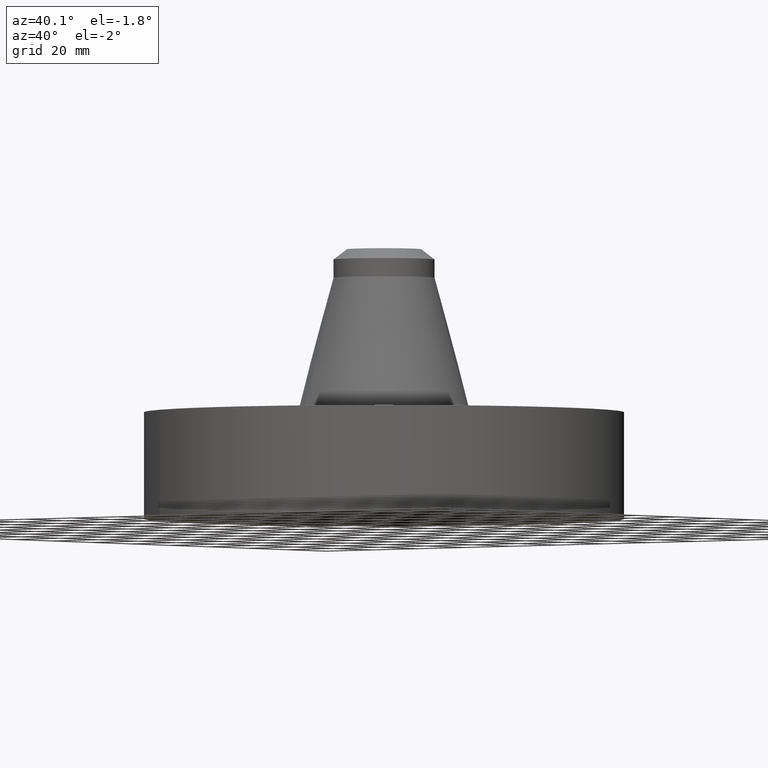
[diagram: clean part render]
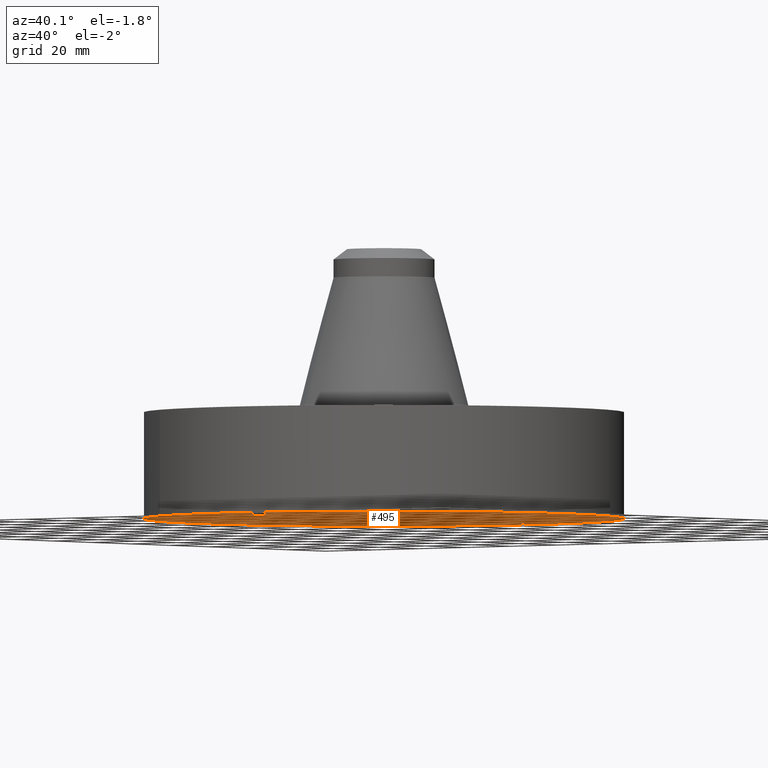
[diagram: same view with one face highlighted and labeled with its STEP entity id]
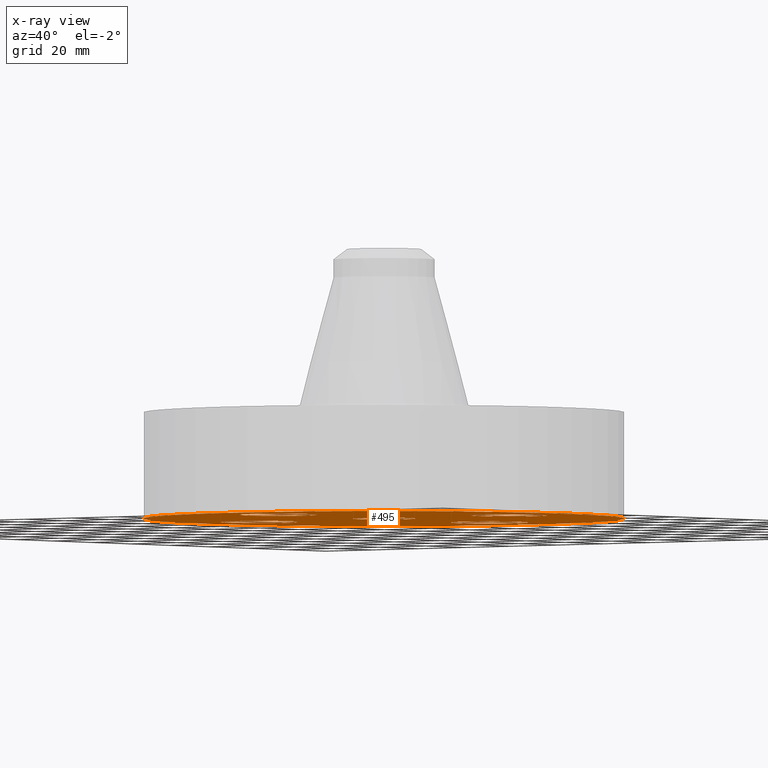
[diagram: x-ray of the same camera — body ghosted, the highlighted face saturated]
A machine part, auxiliary view. The second image highlights one B-rep face of the part: STEP entity #495.
The next image is the same camera in x-ray: the body ghosted, the highlighted face saturated — about 0% of this face is hidden behind the body in this view.
In plain terms, the highlighted planar face has unit normal (0, 0, -1).
Its self-contained STEP definition (entity closure, byte-faithful):
#51=AXIS2_PLACEMENT_3D('Circle Axis2P3D',#49,#50,$) ;
#77=AXIS2_PLACEMENT_3D('Circle Axis2P3D',#75,#76,$) ;
#99=AXIS2_PLACEMENT_3D('Circle Axis2P3D',#97,#98,$) ;
#134=AXIS2_PLACEMENT_3D('Circle Axis2P3D',#132,#133,$) ;
#395=AXIS2_PLACEMENT_3D('Circle Axis2P3D',#393,#394,$) ;
#414=AXIS2_PLACEMENT_3D('Circle Axis2P3D',#412,#413,$) ;
#427=AXIS2_PLACEMENT_3D('Plane Axis2P3D',#424,#425,#426) ;
#443=AXIS2_PLACEMENT_3D('Circle Axis2P3D',#441,#442,$) ;
#452=AXIS2_PLACEMENT_3D('Circle Axis2P3D',#450,#451,$) ;
#461=AXIS2_PLACEMENT_3D('Circle Axis2P3D',#459,#460,$) ;
#470=AXIS2_PLACEMENT_3D('Circle Axis2P3D',#468,#469,$) ;
#479=AXIS2_PLACEMENT_3D('Circle Axis2P3D',#477,#478,$) ;
#488=AXIS2_PLACEMENT_3D('Circle Axis2P3D',#486,#487,$) ;
#44=CARTESIAN_POINT('Vertex',(1.68620871906,0.239712769303,0.)) ;
#49=CARTESIAN_POINT('Axis2P3D Location',(2.12500000001,0.,0.)) ;
#53=CARTESIAN_POINT('Vertex',(2.56379128096,-0.239712769303,0.)) ;
#75=CARTESIAN_POINT('Axis2P3D Location',(2.12500000001,0.,0.)) ;
#97=CARTESIAN_POINT('Axis2P3D Location',(0.,0.,2.79741234551E-016)) ;
#101=CARTESIAN_POINT('Vertex',(-1.49820480814,-2.74244550592,0.)) ;
#103=CARTESIAN_POINT('Vertex',(1.49820480814,2.74244550592,0.)) ;
#132=CARTESIAN_POINT('Axis2P3D Location',(0.,0.,2.79741234551E-016)) ;
#390=CARTESIAN_POINT('Vertex',(-0.195365906982,-0.357614893972,-4.75560098737E-015)) ;
#393=CARTESIAN_POINT('Axis2P3D Location',(0.,0.,-5.03534222192E-015)) ;
#397=CARTESIAN_POINT('Vertex',(0.195365906982,0.357614893972,-4.75560098737E-015)) ;
#412=CARTESIAN_POINT('Axis2P3D Location',(0.,0.,-5.03534222192E-015)) ;
#424=CARTESIAN_POINT('Axis2P3D Location',(0.,0.407500000002,0.)) ;
#441=CARTESIAN_POINT('Axis2P3D Location',(-2.09805925913E-016,-2.12500000001,0.)) ;
#445=CARTESIAN_POINT('Vertex',(0.239712769303,-1.68620871906,0.)) ;
#447=CARTESIAN_POINT('Vertex',(-0.239712769303,-2.56379128096,0.)) ;
#450=CARTESIAN_POINT('Axis2P3D Location',(4.19611851827E-016,-2.12500000001,0.)) ;
#459=CARTESIAN_POINT('Axis2P3D Location',(-2.12500000001,-1.39870617276E-016,0.)) ;
#463=CARTESIAN_POINT('Vertex',(-1.68620871906,-0.239712769303,0.)) ;
#465=CARTESIAN_POINT('Vertex',(-2.56379128096,0.239712769303,0.)) ;
#468=CARTESIAN_POINT('Axis2P3D Location',(-2.12500000001,-1.39870617276E-016,0.)) ;
#477=CARTESIAN_POINT('Axis2P3D Location',(-2.09805925913E-016,2.12500000001,0.)) ;
#481=CARTESIAN_POINT('Vertex',(-0.239712769303,1.68620871906,0.)) ;
#483=CARTESIAN_POINT('Vertex',(0.239712769303,2.56379128096,0.)) ;
#486=CARTESIAN_POINT('Axis2P3D Location',(-2.79741234551E-016,2.12500000001,0.)) ;
#50=DIRECTION('Axis2P3D Direction',(0.,-0.,-0.0393700787402)) ;
#76=DIRECTION('Axis2P3D Direction',(0.,-0.,-0.0393700787402)) ;
#98=DIRECTION('Axis2P3D Direction',(0.,0.,-0.0393700787402)) ;
#133=DIRECTION('Axis2P3D Direction',(0.,0.,-0.0393700787402)) ;
#394=DIRECTION('Axis2P3D Direction',(0.,0.,-0.0393700787402)) ;
#413=DIRECTION('Axis2P3D Direction',(0.,0.,-0.0393700787402)) ;
#425=DIRECTION('Axis2P3D Direction',(0.,0.,-0.0393700787402)) ;
#426=DIRECTION('Axis2P3D XDirection',(0.0393700787402,0.,0.)) ;
#442=DIRECTION('Axis2P3D Direction',(0.,0.,-0.0393700787402)) ;
#451=DIRECTION('Axis2P3D Direction',(0.,0.,-0.0393700787402)) ;
#460=DIRECTION('Axis2P3D Direction',(0.,0.,-0.0393700787402)) ;
#469=DIRECTION('Axis2P3D Direction',(0.,0.,-0.0393700787402)) ;
#478=DIRECTION('Axis2P3D Direction',(0.,0.,-0.0393700787402)) ;
#487=DIRECTION('Axis2P3D Direction',(0.,0.,-0.0393700787402)) ;
#430=ORIENTED_EDGE('',*,*,#105,.T.) ;
#431=ORIENTED_EDGE('',*,*,#136,.T.) ;
#434=ORIENTED_EDGE('',*,*,#79,.F.) ;
#435=ORIENTED_EDGE('',*,*,#55,.F.) ;
#438=ORIENTED_EDGE('',*,*,#416,.F.) ;
#439=ORIENTED_EDGE('',*,*,#399,.F.) ;
#456=ORIENTED_EDGE('',*,*,#449,.F.) ;
#457=ORIENTED_EDGE('',*,*,#454,.F.) ;
#474=ORIENTED_EDGE('',*,*,#467,.F.) ;
#475=ORIENTED_EDGE('',*,*,#472,.F.) ;
#492=ORIENTED_EDGE('',*,*,#485,.F.) ;
#493=ORIENTED_EDGE('',*,*,#490,.F.) ;
#436=FACE_BOUND('',#433,.T.) ;
#440=FACE_BOUND('',#437,.T.) ;
#458=FACE_BOUND('',#455,.T.) ;
#476=FACE_BOUND('',#473,.T.) ;
#494=FACE_BOUND('',#491,.T.) ;
#495=ADVANCED_FACE('PartBody',(#432,#436,#440,#458,#476,#494),#428,.T.) ;
#52=CIRCLE('generated circle',#51,0.500000000002) ;
#78=CIRCLE('generated circle',#77,0.500000000002) ;
#100=CIRCLE('generated circle',#99,3.12500000001) ;
#135=CIRCLE('generated circle',#134,3.12500000001) ;
#396=CIRCLE('generated circle',#395,0.407500000002) ;
#415=CIRCLE('generated circle',#414,0.407500000002) ;
#444=CIRCLE('generated circle',#443,0.500000000002) ;
#453=CIRCLE('generated circle',#452,0.500000000002) ;
#462=CIRCLE('generated circle',#461,0.500000000002) ;
#471=CIRCLE('generated circle',#470,0.500000000002) ;
#480=CIRCLE('generated circle',#479,0.500000000002) ;
#489=CIRCLE('generated circle',#488,0.500000000002) ;
#55=EDGE_CURVE('',#45,#54,#52,.T.) ;
#79=EDGE_CURVE('',#54,#45,#78,.T.) ;
#105=EDGE_CURVE('',#102,#104,#100,.T.) ;
#136=EDGE_CURVE('',#104,#102,#135,.T.) ;
#399=EDGE_CURVE('',#391,#398,#396,.T.) ;
#416=EDGE_CURVE('',#398,#391,#415,.T.) ;
#449=EDGE_CURVE('',#446,#448,#444,.T.) ;
#454=EDGE_CURVE('',#448,#446,#453,.T.) ;
#467=EDGE_CURVE('',#464,#466,#462,.T.) ;
#472=EDGE_CURVE('',#466,#464,#471,.T.) ;
#485=EDGE_CURVE('',#482,#484,#480,.T.) ;
#490=EDGE_CURVE('',#484,#482,#489,.T.) ;
#429=EDGE_LOOP('',(#430,#431)) ;
#433=EDGE_LOOP('',(#434,#435)) ;
#437=EDGE_LOOP('',(#438,#439)) ;
#455=EDGE_LOOP('',(#456,#457)) ;
#473=EDGE_LOOP('',(#474,#475)) ;
#491=EDGE_LOOP('',(#492,#493)) ;
#432=FACE_OUTER_BOUND('',#429,.T.) ;
#428=PLANE('',#427) ;
#45=VERTEX_POINT('',#44) ;
#54=VERTEX_POINT('',#53) ;
#102=VERTEX_POINT('',#101) ;
#104=VERTEX_POINT('',#103) ;
#391=VERTEX_POINT('',#390) ;
#398=VERTEX_POINT('',#397) ;
#446=VERTEX_POINT('',#445) ;
#448=VERTEX_POINT('',#447) ;
#464=VERTEX_POINT('',#463) ;
#466=VERTEX_POINT('',#465) ;
#482=VERTEX_POINT('',#481) ;
#484=VERTEX_POINT('',#483) ;